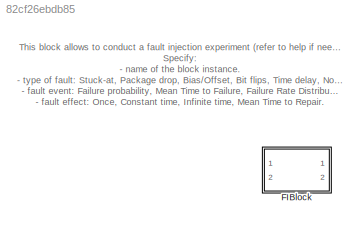
MODEL slx_82cf26ebdb85
KIND library
CONFIG AbsTol = auto
CONFIG EnableMultiTasking = off
CONFIG FixedStep = auto
CONFIG MaxStep = auto
CONFIG MinStep = auto
CONFIG RelTol = 1e-3
CONFIG SampleTimeConstraint = Unconstrained
CONFIG Solver = VariableStepAuto
CONFIG SolverName = VariableStepAuto
CONFIG StartTime = 0.0
CONFIG StopTime = 10.0
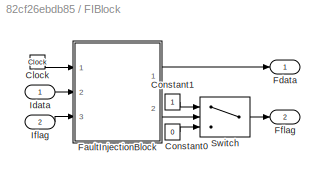
BLOCK [SubSystem] FIBlock
  BlockKeywords = __PRM__SERIALIZED__DATA__:FIBlock,FI Block,FaultInjectionBlock,Fault Injection
  Ports = [2, 2]
  RTWSystemCode = Reusable function
  RequestExecContextInheritance = off
  TreatAsAtomicUnit = on
BLOCK [Clock] FIBlock/Clock
BLOCK [Constant] FIBlock/Constant0
  Value = 0
BLOCK [Constant] FIBlock/Constant1
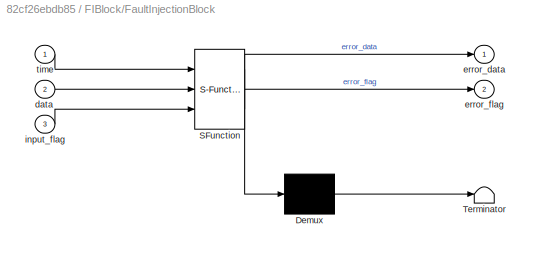
BLOCK [SubSystem] FIBlock/FaultInjectionBlock
  ErrorFcn = Stateflow.Translate.translate
  PermitHierarchicalResolution = ExplicitOnly
  Ports = [3, 2]
  RTWSystemCode = Reusable function
  RequestExecContextInheritance = off
  SFBlockType = MATLAB Function
  SystemSampleTime = 0.005
  TreatAsAtomicUnit = on
BLOCK [Demux] FIBlock/FaultInjectionBlock/ Demux 
  Outputs = 1
  Ports = [1, 1]
BLOCK [S-Function] FIBlock/FaultInjectionBlock/ SFunction 
  EnableBusSupport = off
  FunctionName = sf_sfun
  Parameters = FIBlockName
  PortCounts = [3 3]
  Ports = [3, 3]
  SFcnIsStateOwnerBlock = off
  SFunctionDeploymentMode = off
  Tag = Stateflow S-Function 2
BLOCK [Terminator] FIBlock/FaultInjectionBlock/ Terminator 
BLOCK [Inport] FIBlock/FaultInjectionBlock/data
  IconDisplay = Port number
  Port = 2
BLOCK [Outport] FIBlock/FaultInjectionBlock/error_data
  IconDisplay = Port number
BLOCK [Outport] FIBlock/FaultInjectionBlock/error_flag
  IconDisplay = Port number
  Port = 2
BLOCK [Inport] FIBlock/FaultInjectionBlock/input_flag
  IconDisplay = Port number
  Port = 3
BLOCK [Inport] FIBlock/FaultInjectionBlock/time
  IconDisplay = Port number
BLOCK [Outport] FIBlock/Fdata
  IconDisplay = Port number
BLOCK [Outport] FIBlock/Fflag
  IconDisplay = Port number
  Port = 2
BLOCK [Inport] FIBlock/Idata
  IconDisplay = Port number
BLOCK [Inport] FIBlock/Iflag
  IconDisplay = Port number
  Port = 2
BLOCK [Switch] FIBlock/Switch
  Criteria = u2 > Threshold
  InputSameDT = off
  SaturateOnIntegerOverflow = off
ANNOTATION (root): This block allows to conduct a fault injection experiment (refer to help if needed). Specify: - name of the block instance. - type of fault: Stuck-at, Package drop, Bias/Offset, Bit flips, Time delay, Noise. - fault event: Failure probability, Mean Time to Failure, Failure Rate Distribution, Deterministic. - fault effect: Once, Constant time, Infinite time, Mean Time to Repair.
CHART FIBlock/FaultInjectionBlock states=1 transitions=1
  STATE_LABEL 'eML_blk_kernel()'
  STATE_LABEL "SCRIPT:\nfunction [error_data, error_flag] = fcn(time, data, input_flag, FIBlockName)\ncoder.extrinsic('wrapper');\nd = data;\nt = time;\nn = num2str(FIBlockName);\nf = input_flag;\nerror_data = coder.nullcopy(zeros(size(d)));\nerror_flag = 0;\n[error_data, error_flag] = wrapper(d, t, n, f);\nend"
